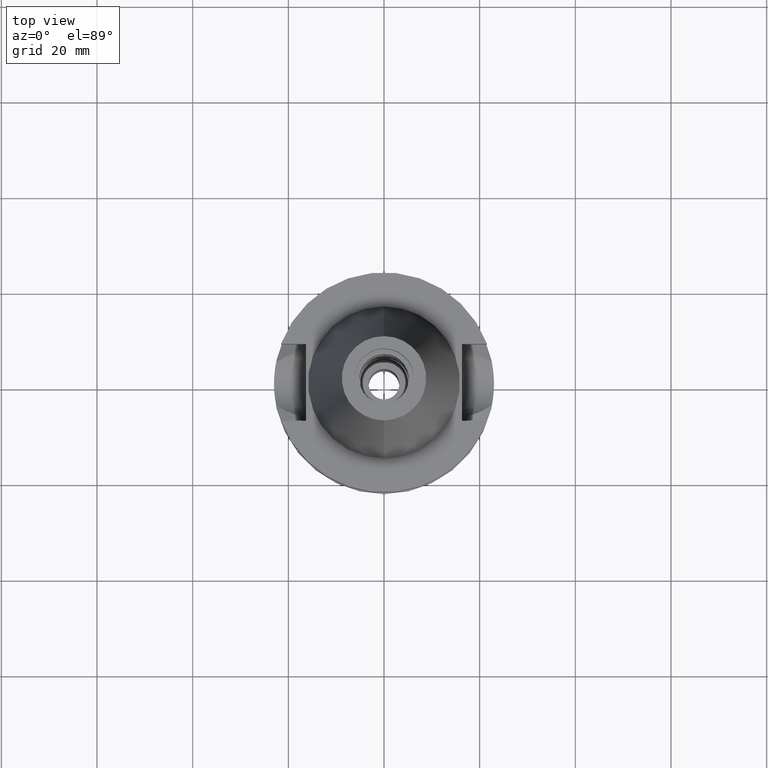
[diagram: clean part render]
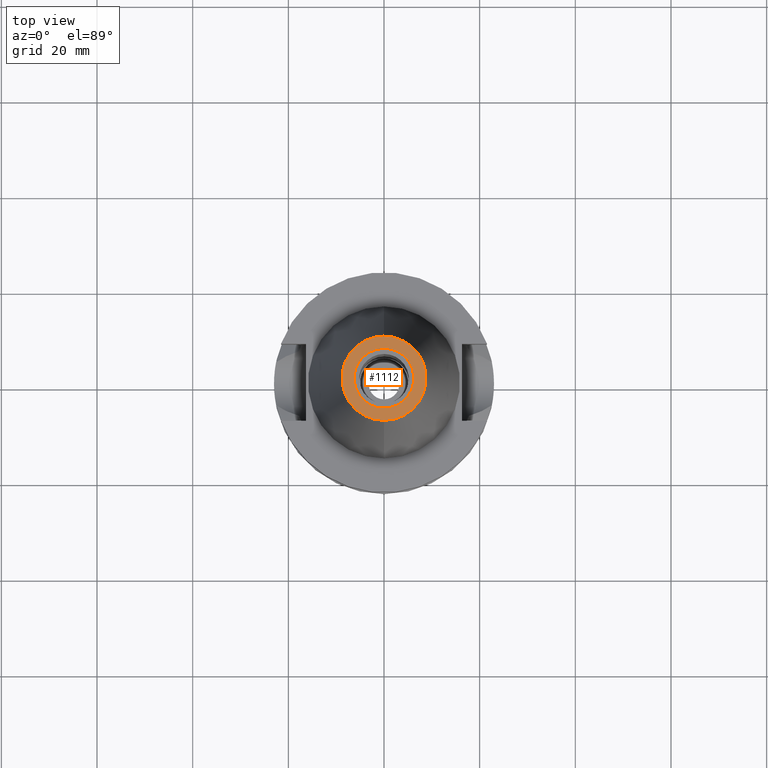
[diagram: same view with one face highlighted and labeled with its STEP entity id]
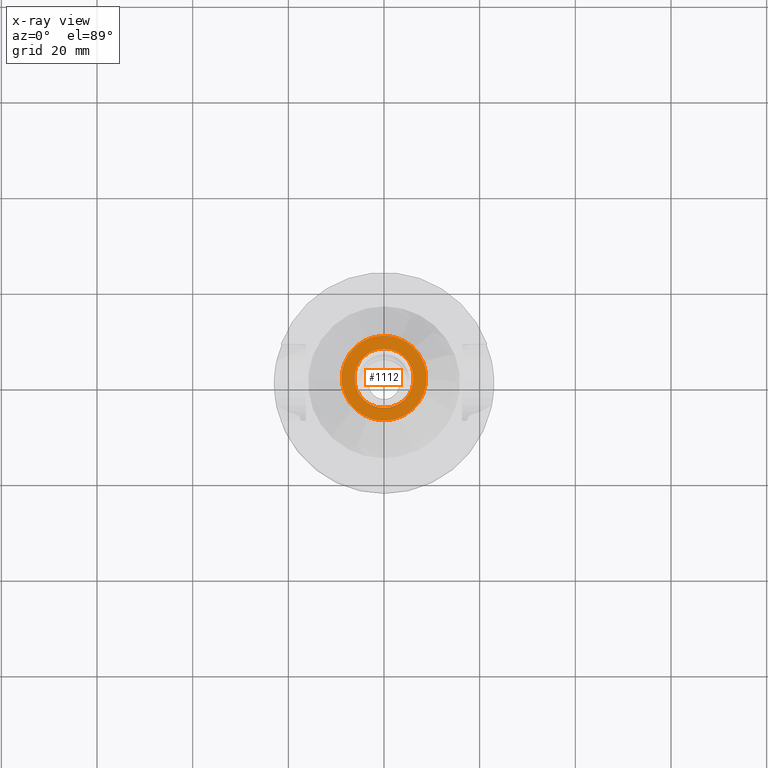
[diagram: x-ray of the same camera — body ghosted, the highlighted face saturated]
A machine part, top view. The second image highlights one B-rep face of the part: STEP entity #1112.
The next image is the same camera in x-ray: the body ghosted, the highlighted face saturated — about 0% of this face is hidden behind the body in this view.
In plain terms, the highlighted planar face has unit normal (0, 0, -1).
Its self-contained STEP definition (entity closure, byte-faithful):
#3 = VERTEX_POINT ( 'NONE', #3040 ) ;
#15 = EDGE_LOOP ( 'NONE', ( #114, #2312 ) ) ;
#83 = CARTESIAN_POINT ( 'NONE',  ( 0.0000000000000000000, 0.0000000000000000000, 48.39999999999999858 ) ) ;
#114 = ORIENTED_EDGE ( 'NONE', *, *, #2733, .F. ) ;
#149 = CIRCLE ( 'NONE', #393, 6.250000000000000000 ) ;
#393 = AXIS2_PLACEMENT_3D ( 'NONE', #2418, #1934, #2855 ) ;
#398 = PLANE ( 'NONE',  #576 ) ;
#513 = DIRECTION ( 'NONE',  ( 0.0000000000000000000, -1.000000000000000000, 0.0000000000000000000 ) ) ;
#529 = DIRECTION ( 'NONE',  ( 0.0000000000000000000, 0.0000000000000000000, -1.000000000000000000 ) ) ;
#537 = AXIS2_PLACEMENT_3D ( 'NONE', #2647, #529, #513 ) ;
#576 = AXIS2_PLACEMENT_3D ( 'NONE', #1803, #2937, #1375 ) ;
#640 = FACE_BOUND ( 'NONE', #1471, .T. ) ;
#748 = DIRECTION ( 'NONE',  ( 0.0000000000000000000, 0.0000000000000000000, -1.000000000000000000 ) ) ;
#838 = ORIENTED_EDGE ( 'NONE', *, *, #1221, .F. ) ;
#989 = DIRECTION ( 'NONE',  ( 0.0000000000000000000, 0.0000000000000000000, 1.000000000000000000 ) ) ;
#1034 = DIRECTION ( 'NONE',  ( 0.0000000000000000000, -1.000000000000000000, 0.0000000000000000000 ) ) ;
#1072 = ORIENTED_EDGE ( 'NONE', *, *, #1573, .F. ) ;
#1112 = ADVANCED_FACE ( 'NONE', ( #1609, #640 ), #398, .F. ) ;
#1189 = AXIS2_PLACEMENT_3D ( 'NONE', #2442, #989, #1034 ) ;
#1221 = EDGE_CURVE ( 'NONE', #3016, #3, #2511, .T. ) ;
#1250 = CIRCLE ( 'NONE', #2811, 8.816791732783000768 ) ;
#1375 = DIRECTION ( 'NONE',  ( 0.0000000000000000000, -1.000000000000000000, 0.0000000000000000000 ) ) ;
#1471 = EDGE_LOOP ( 'NONE', ( #1072, #838 ) ) ;
#1573 = EDGE_CURVE ( 'NONE', #3, #3016, #149, .T. ) ;
#1609 = FACE_OUTER_BOUND ( 'NONE', #15, .T. ) ;
#1670 = VERTEX_POINT ( 'NONE', #2404 ) ;
#1803 = CARTESIAN_POINT ( 'NONE',  ( 0.0000000000000000000, 0.0000000000000000000, 48.39999999999999858 ) ) ;
#1890 = EDGE_CURVE ( 'NONE', #2148, #1670, #2421, .T. ) ;
#1934 = DIRECTION ( 'NONE',  ( 0.0000000000000000000, 0.0000000000000000000, 1.000000000000000000 ) ) ;
#1984 = DIRECTION ( 'NONE',  ( 0.0000000000000000000, 1.000000000000000000, 0.0000000000000000000 ) ) ;
#2102 = CARTESIAN_POINT ( 'NONE',  ( 0.0000000000000000000, -8.816791732783000768, 48.39999999999999858 ) ) ;
#2148 = VERTEX_POINT ( 'NONE', #2102 ) ;
#2260 = CARTESIAN_POINT ( 'NONE',  ( 0.0000000000000000000, -6.250000000000000000, 48.39999999999999858 ) ) ;
#2312 = ORIENTED_EDGE ( 'NONE', *, *, #1890, .F. ) ;
#2404 = CARTESIAN_POINT ( 'NONE',  ( 0.0000000000000000000, 8.816791732783000768, 48.39999999999999858 ) ) ;
#2418 = CARTESIAN_POINT ( 'NONE',  ( 0.0000000000000000000, 0.0000000000000000000, 48.39999999999999858 ) ) ;
#2421 = CIRCLE ( 'NONE', #537, 8.816791732783000768 ) ;
#2442 = CARTESIAN_POINT ( 'NONE',  ( 0.0000000000000000000, 0.0000000000000000000, 48.39999999999999858 ) ) ;
#2511 = CIRCLE ( 'NONE', #1189, 6.250000000000000000 ) ;
#2647 = CARTESIAN_POINT ( 'NONE',  ( 0.0000000000000000000, 0.0000000000000000000, 48.39999999999999858 ) ) ;
#2733 = EDGE_CURVE ( 'NONE', #1670, #2148, #1250, .T. ) ;
#2811 = AXIS2_PLACEMENT_3D ( 'NONE', #83, #748, #1984 ) ;
#2855 = DIRECTION ( 'NONE',  ( 0.0000000000000000000, 1.000000000000000000, 0.0000000000000000000 ) ) ;
#2937 = DIRECTION ( 'NONE',  ( 0.0000000000000000000, 0.0000000000000000000, -1.000000000000000000 ) ) ;
#3016 = VERTEX_POINT ( 'NONE', #2260 ) ;
#3040 = CARTESIAN_POINT ( 'NONE',  ( 0.0000000000000000000, 6.250000000000000000, 48.39999999999999858 ) ) ;